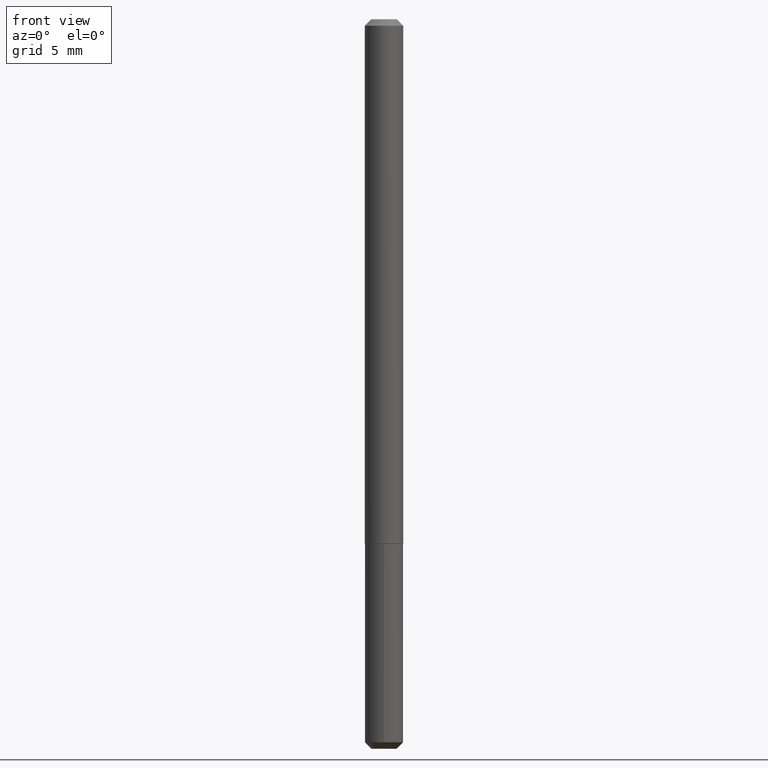
[diagram: clean part render]
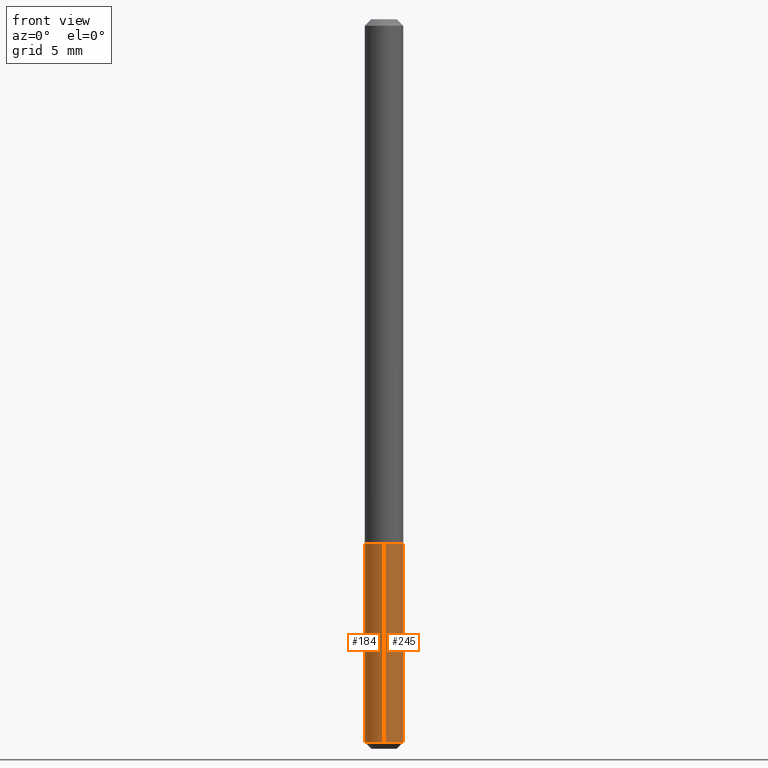
[diagram: same view with one multi-face feature highlighted, each face labeled with its STEP entity id]
A machine part, front view. The highlighted faces form ONE feature: a constant-radius fillet chain: 2 tangent blend faces with common blend radius 1.4999 mm. The faces share edges in the B-rep.
Their STEP definitions:
[1] entity #184 (Cylinder):
#13 = EDGE_LOOP ( 'NONE', ( #120, #62, #279, #117 ) ) ;
#19 = DIRECTION ( 'NONE',  ( -6.982962677686265922E-15, -1.000000000000000000, 4.626330217890369336E-15 ) ) ;
#21 = CARTESIAN_POINT ( 'NONE',  ( 4.195754854663939737E-16, 0.05904999999999229615, -2.224100000000000410 ) ) ;
#36 = DIRECTION ( 'NONE',  ( -2.446576090179258832E-29, 3.489895645140871787E-15, 1.000000000000000000 ) ) ;
#44 = VERTEX_POINT ( 'NONE', #219 ) ;
#48 = DIRECTION ( 'NONE',  ( -2.446576090179258832E-29, 3.489895645140871393E-15, 1.000000000000000000 ) ) ;
#50 = DIRECTION ( 'NONE',  ( -2.446576090179258832E-29, 3.489895645140871393E-15, 1.000000000000000000 ) ) ;
#62 = ORIENTED_EDGE ( 'NONE', *, *, #109, .T. ) ;
#77 = FACE_OUTER_BOUND ( 'NONE', #13, .T. ) ;
#89 = CARTESIAN_POINT ( 'NONE',  ( -4.123439461173344910E-16, -0.05905000000000563271, -1.614199999999999635 ) ) ;
#109 = EDGE_CURVE ( 'NONE', #277, #44, #354, .T. ) ;
#117 = ORIENTED_EDGE ( 'NONE', *, *, #156, .F. ) ;
#120 = ORIENTED_EDGE ( 'NONE', *, *, #391, .F. ) ;
#142 = AXIS2_PLACEMENT_3D ( 'NONE', #174, #50, #167 ) ;
#156 = EDGE_CURVE ( 'NONE', #177, #335, #312, .T. ) ;
#167 = DIRECTION ( 'NONE',  ( -6.982962677686265922E-15, -1.000000000000000000, 4.626330217890369336E-15 ) ) ;
#174 = CARTESIAN_POINT ( 'NONE',  ( 3.947475746944047390E-29, -5.635949177160606158E-15, -1.614199999999999857 ) ) ;
#175 = CYLINDRICAL_SURFACE ( 'NONE', #181, 0.05904999999999999832 ) ;
#177 = VERTEX_POINT ( 'NONE', #234 ) ;
#181 = AXIS2_PLACEMENT_3D ( 'NONE', #241, #48, #408 ) ;
#184 = ADVANCED_FACE ( 'NONE', ( #77 ), #175, .T. ) ;
#201 = DIRECTION ( 'NONE',  ( -2.446576090179258832E-29, 3.489895645140871393E-15, 1.000000000000000000 ) ) ;
#211 = LINE ( 'NONE', #246, #215 ) ;
#215 = VECTOR ( 'NONE', #345, 39.37007874015748143 ) ;
#219 = CARTESIAN_POINT ( 'NONE',  ( -4.123439461173191083E-16, -0.05905000000000770050, -2.224099999999999522 ) ) ;
#234 = CARTESIAN_POINT ( 'NONE',  ( 4.195754854663935792E-16, 0.05904999999999435700, -1.614200000000000301 ) ) ;
#241 = CARTESIAN_POINT ( 'NONE',  ( 3.947475746944047390E-29, -5.635949177160606158E-15, -1.614199999999999857 ) ) ;
#246 = CARTESIAN_POINT ( 'NONE',  ( 4.195754854663785909E-16, 0.05904999999999436394, -1.614200000000000301 ) ) ;
#266 = VECTOR ( 'NONE', #36, 39.37007874015748143 ) ;
#277 = VERTEX_POINT ( 'NONE', #21 ) ;
#279 = ORIENTED_EDGE ( 'NONE', *, *, #412, .T. ) ;
#312 = CIRCLE ( 'NONE', #142, 0.05904999999999999832 ) ;
#333 = CARTESIAN_POINT ( 'NONE',  ( 5.439642504344377685E-29, -7.764436531132022734E-15, -2.224099999999999966 ) ) ;
#335 = VERTEX_POINT ( 'NONE', #394 ) ;
#345 = DIRECTION ( 'NONE',  ( -2.446576090179258832E-29, 3.489895645140871787E-15, 1.000000000000000000 ) ) ;
#347 = LINE ( 'NONE', #89, #266 ) ;
#354 = CIRCLE ( 'NONE', #373, 0.05904999999999999832 ) ;
#373 = AXIS2_PLACEMENT_3D ( 'NONE', #333, #201, #19 ) ;
#391 = EDGE_CURVE ( 'NONE', #277, #177, #211, .T. ) ;
#394 = CARTESIAN_POINT ( 'NONE',  ( -4.123439461173344910E-16, -0.05905000000000563271, -1.614199999999999635 ) ) ;
#408 = DIRECTION ( 'NONE',  ( -6.982962677686265922E-15, -1.000000000000000000, 4.626330217890369336E-15 ) ) ;
#412 = EDGE_CURVE ( 'NONE', #44, #335, #347, .T. ) ;
[2] entity #245 (Cylinder):
#15 = EDGE_LOOP ( 'NONE', ( #329, #169, #213, #18 ) ) ;
#18 = ORIENTED_EDGE ( 'NONE', *, *, #412, .F. ) ;
#21 = CARTESIAN_POINT ( 'NONE',  ( 4.195754854663939737E-16, 0.05904999999999229615, -2.224100000000000410 ) ) ;
#36 = DIRECTION ( 'NONE',  ( -2.446576090179258832E-29, 3.489895645140871787E-15, 1.000000000000000000 ) ) ;
#44 = VERTEX_POINT ( 'NONE', #219 ) ;
#63 = DIRECTION ( 'NONE',  ( -2.446576090179258832E-29, 3.489895645140871393E-15, 1.000000000000000000 ) ) ;
#80 = CARTESIAN_POINT ( 'NONE',  ( 3.947475746944047390E-29, -5.635949177160606158E-15, -1.614199999999999857 ) ) ;
#84 = DIRECTION ( 'NONE',  ( -2.446576090179258832E-29, 3.489895645140871393E-15, 1.000000000000000000 ) ) ;
#89 = CARTESIAN_POINT ( 'NONE',  ( -4.123439461173344910E-16, -0.05905000000000563271, -1.614199999999999635 ) ) ;
#103 = FACE_OUTER_BOUND ( 'NONE', #15, .T. ) ;
#131 = EDGE_CURVE ( 'NONE', #335, #177, #218, .T. ) ;
#149 = DIRECTION ( 'NONE',  ( -2.446576090179258832E-29, 3.489895645140871393E-15, 1.000000000000000000 ) ) ;
#157 = AXIS2_PLACEMENT_3D ( 'NONE', #80, #149, #296 ) ;
#169 = ORIENTED_EDGE ( 'NONE', *, *, #391, .T. ) ;
#177 = VERTEX_POINT ( 'NONE', #234 ) ;
#178 = CARTESIAN_POINT ( 'NONE',  ( 5.439642504344377685E-29, -7.764436531132022734E-15, -2.224099999999999966 ) ) ;
#210 = DIRECTION ( 'NONE',  ( -6.982962677686265922E-15, -1.000000000000000000, 4.626330217890369336E-15 ) ) ;
#211 = LINE ( 'NONE', #246, #215 ) ;
#213 = ORIENTED_EDGE ( 'NONE', *, *, #131, .F. ) ;
#215 = VECTOR ( 'NONE', #345, 39.37007874015748143 ) ;
#218 = CIRCLE ( 'NONE', #332, 0.05904999999999999832 ) ;
#219 = CARTESIAN_POINT ( 'NONE',  ( -4.123439461173191083E-16, -0.05905000000000770050, -2.224099999999999522 ) ) ;
#234 = CARTESIAN_POINT ( 'NONE',  ( 4.195754854663935792E-16, 0.05904999999999435700, -1.614200000000000301 ) ) ;
#237 = CYLINDRICAL_SURFACE ( 'NONE', #157, 0.05904999999999999832 ) ;
#245 = ADVANCED_FACE ( 'NONE', ( #103 ), #237, .T. ) ;
#246 = CARTESIAN_POINT ( 'NONE',  ( 4.195754854663785909E-16, 0.05904999999999436394, -1.614200000000000301 ) ) ;
#247 = AXIS2_PLACEMENT_3D ( 'NONE', #178, #63, #210 ) ;
#266 = VECTOR ( 'NONE', #36, 39.37007874015748143 ) ;
#268 = EDGE_CURVE ( 'NONE', #44, #277, #301, .T. ) ;
#277 = VERTEX_POINT ( 'NONE', #21 ) ;
#296 = DIRECTION ( 'NONE',  ( -6.982962677686265922E-15, -1.000000000000000000, 4.626330217890369336E-15 ) ) ;
#301 = CIRCLE ( 'NONE', #247, 0.05904999999999999832 ) ;
#329 = ORIENTED_EDGE ( 'NONE', *, *, #268, .T. ) ;
#332 = AXIS2_PLACEMENT_3D ( 'NONE', #381, #84, #341 ) ;
#335 = VERTEX_POINT ( 'NONE', #394 ) ;
#341 = DIRECTION ( 'NONE',  ( -6.982962677686265922E-15, -1.000000000000000000, 4.626330217890369336E-15 ) ) ;
#345 = DIRECTION ( 'NONE',  ( -2.446576090179258832E-29, 3.489895645140871787E-15, 1.000000000000000000 ) ) ;
#347 = LINE ( 'NONE', #89, #266 ) ;
#381 = CARTESIAN_POINT ( 'NONE',  ( 3.947475746944047390E-29, -5.635949177160606158E-15, -1.614199999999999857 ) ) ;
#391 = EDGE_CURVE ( 'NONE', #277, #177, #211, .T. ) ;
#394 = CARTESIAN_POINT ( 'NONE',  ( -4.123439461173344910E-16, -0.05905000000000563271, -1.614199999999999635 ) ) ;
#412 = EDGE_CURVE ( 'NONE', #44, #335, #347, .T. ) ;